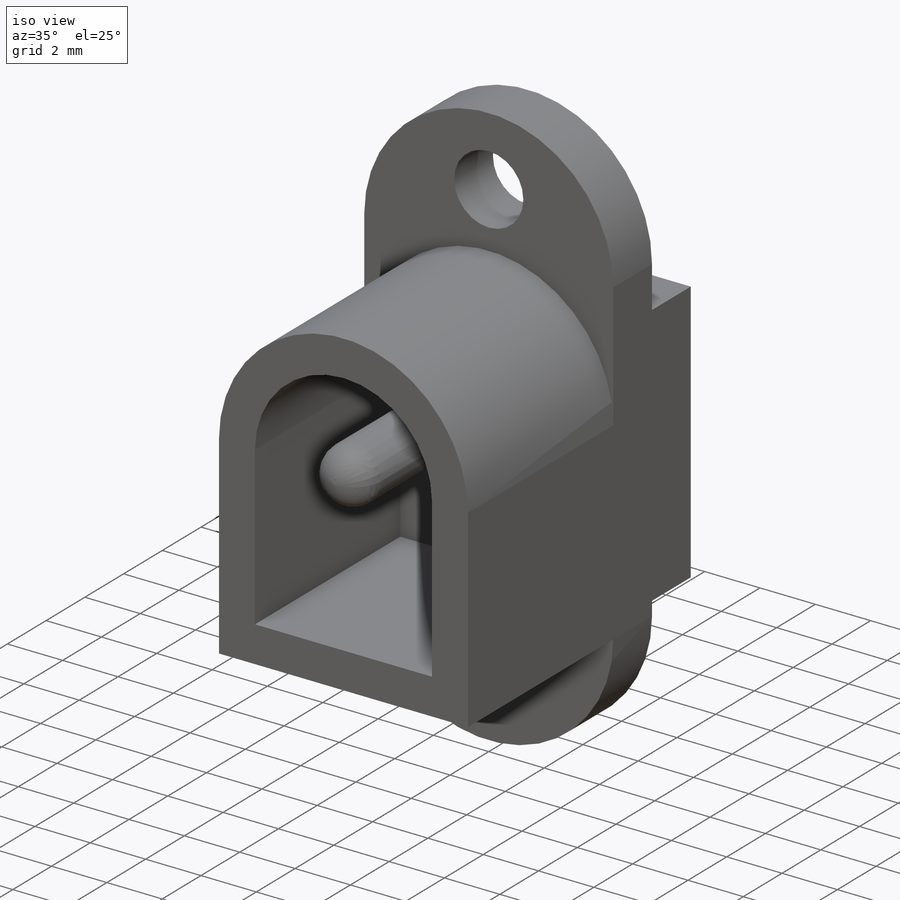
[diagram: iso view]
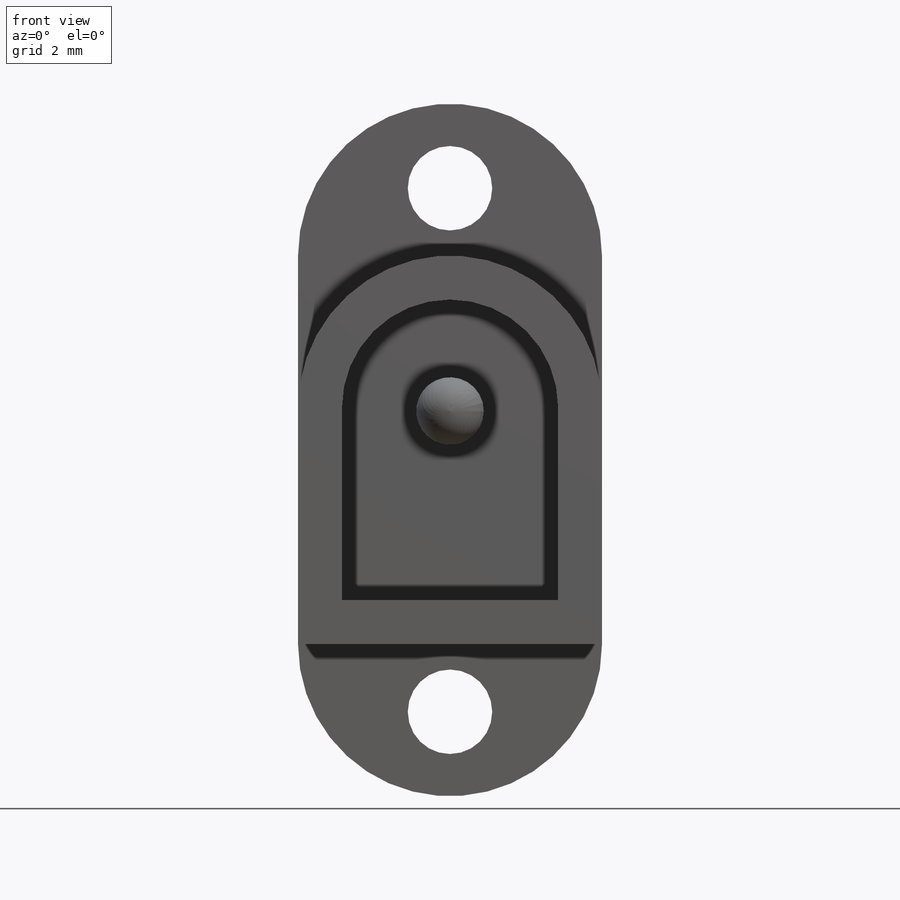
[diagram: front view]
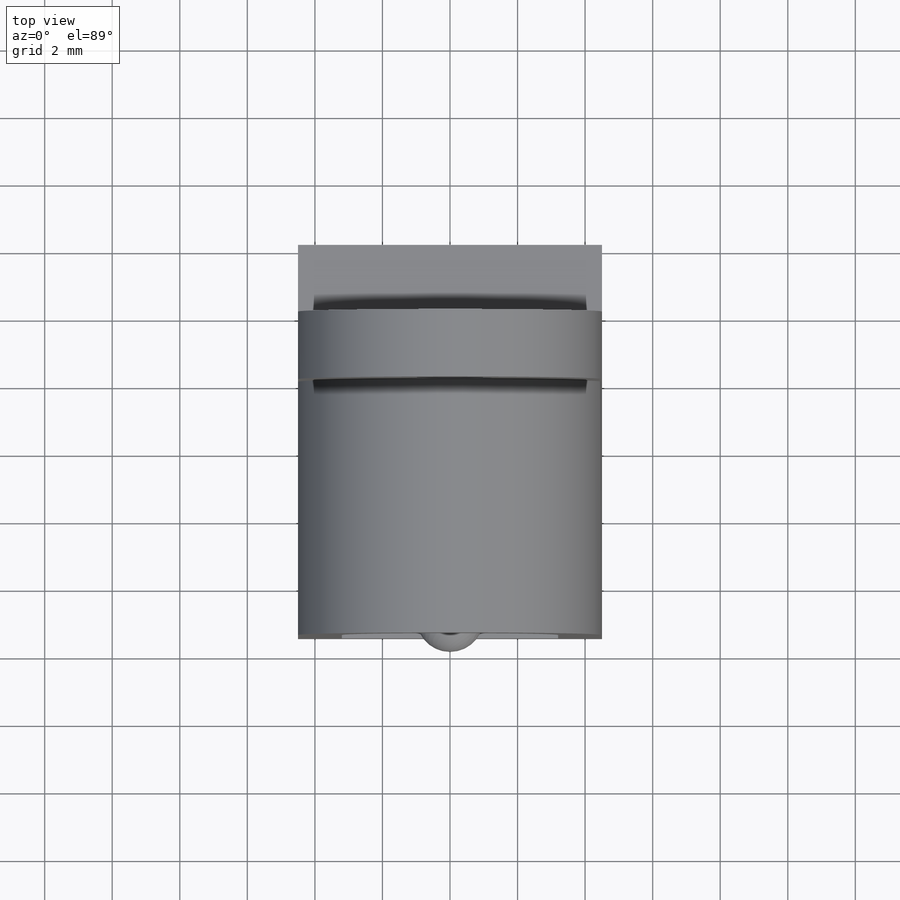
[diagram: top view]
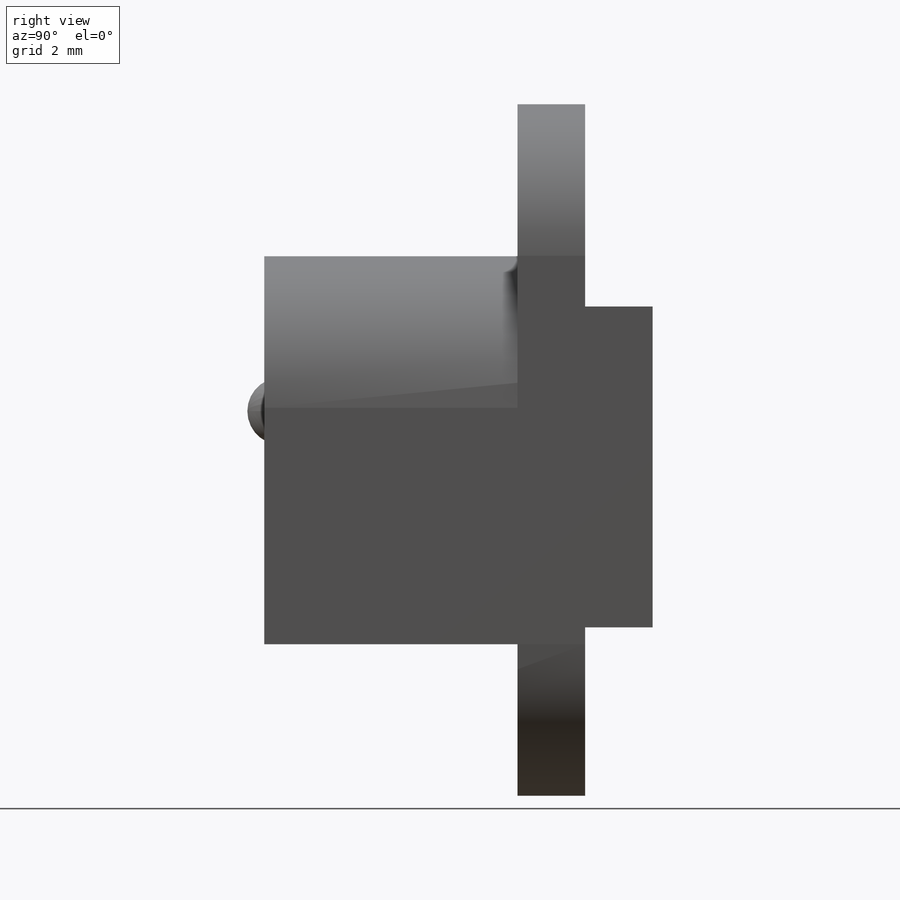
[diagram: right view]
SOLIDWORKS PART (.sldprt)
format: sldprt  version: not decoded by parser v0  size: 252,416 bytes
history: native  units: mm
features: sketch x8, extrude x5, plane x3, cut_extrude x2, material x1, fillet x1 (+8 scaffold rows collapsed)
feature tree (28):
  scaffold x8  (default folders/planes/origin — collapsed)
  material  "Materiale <non specificato>"
  plane  "Piano frontale"
  plane  "Piano superiore"
  plane  "Piano destro"
  sketch  "Schizzo1"  dims[D1=9.0mm D2=11.5mm]
  extrude  "Estrusione-Estrusione1"  Depth=2mm
  sketch  "Schizzo2"
  extrude  "Estrusione-Estrusione2"  Depth=2mm
  sketch  "Schizzo3"  dims[D3=2.5mm D4=2.5mm D1=7.75mm D2=7.75mm]
  cut_extrude  "Taglio-Estrusione1"  Depth=2mm
  sketch  "Schizzo4"  dims[D1=7.0mm]
  extrude  "Estrusione-Estrusione4"  Depth=7.5mm
  sketch  "Schizzo6"  dims[D1=1.3mm D2=1.3mm D3=1.3mm]
  cut_extrude  "Taglio-Estrusione2"  Depth=7.5mm
  sketch  "Schizzo7"  dims[D2=2.0mm D1=3.3mm]
  extrude  "Estrusione-Estrusione5"  Depth=8mm
  fillet  "Raccordo1"  Radius=1mm
  sketch  "Schizzo8"  dims[D1=5.0mm D2=6.0mm]
  extrude  "Estrusione-Estrusione6"  Depth=2mm
  sketch  "Schizzo10"
decode coverage: 14 of 16 modeling features carry decoded parameters
note: suppression state not decoded; provenance and decode notes live in map.json
